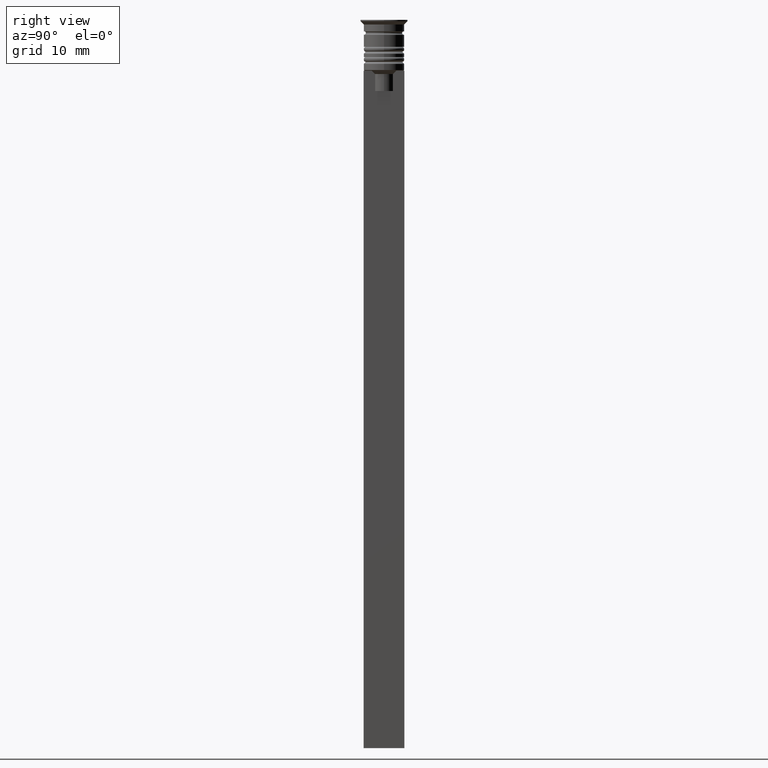
[diagram: clean part render]
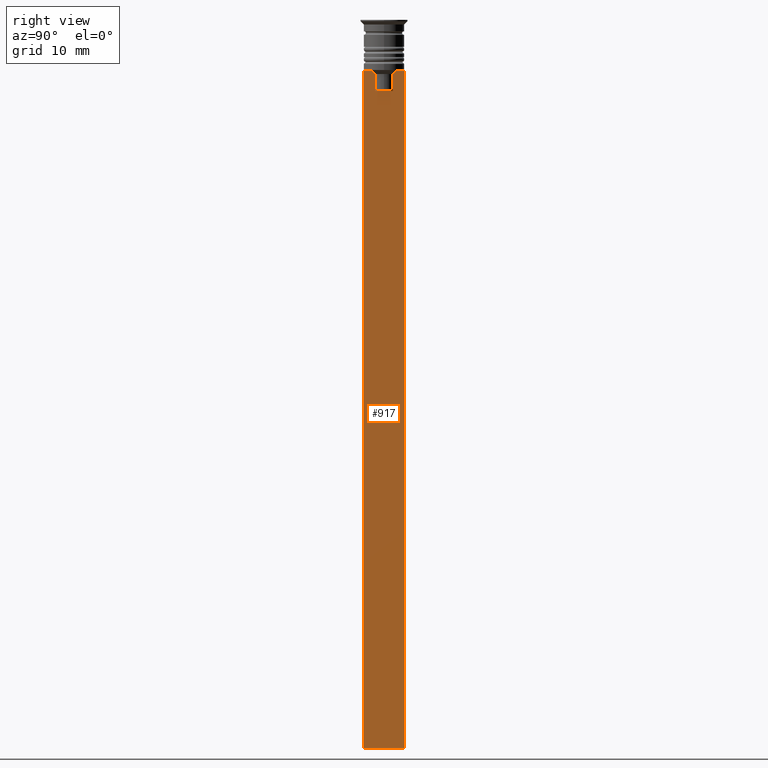
[diagram: same view with one face highlighted and labeled with its STEP entity id]
A machine part, right view. The second image highlights one B-rep face of the part: STEP entity #917.
In plain terms, the highlighted planar face has unit normal (-1, 0, 0).
Its self-contained STEP definition (entity closure, byte-faithful):
#1 = ORIENTED_EDGE ( 'NONE', *, *, #638, .T. ) ;
#42 = VERTEX_POINT ( 'NONE', #1387 ) ;
#60 = CARTESIAN_POINT ( 'NONE',  ( 0.4999999999999998890, -1.833030277982335754, -7.500000000000000000 ) ) ;
#108 = ORIENTED_EDGE ( 'NONE', *, *, #545, .T. ) ;
#123 = VERTEX_POINT ( 'NONE', #985 ) ;
#165 = CARTESIAN_POINT ( 'NONE',  ( 0.4999999999999998890, -1.484307477388859153, -7.835011508197190722 ) ) ;
#179 = VERTEX_POINT ( 'NONE', #1964 ) ;
#271 = LINE ( 'NONE', #760, #765 ) ;
#276 = FACE_OUTER_BOUND ( 'NONE', #792, .T. ) ;
#300 = CARTESIAN_POINT ( 'NONE',  ( 0.4999999999999998890, -1.307669683062199439, -10.49999999999999822 ) ) ;
#352 = CARTESIAN_POINT ( 'NONE',  ( 0.4999999999999998890, 3.000000000000000000, -107.5000000000000000 ) ) ;
#374 = ORIENTED_EDGE ( 'NONE', *, *, #1844, .T. ) ;
#380 = DIRECTION ( 'NONE',  ( 0.000000000000000000, 0.000000000000000000, -1.000000000000000000 ) ) ;
#385 = LINE ( 'NONE', #751, #1558 ) ;
#453 = EDGE_CURVE ( 'NONE', #1350, #633, #825, .T. ) ;
#488 = CARTESIAN_POINT ( 'NONE',  ( 0.4999999999999998890, 1.659046061654642967, -7.667851756010362507 ) ) ;
#544 = EDGE_CURVE ( 'NONE', #1105, #1692, #1572, .T. ) ;
#545 = EDGE_CURVE ( 'NONE', #123, #771, #1427, .T. ) ;
#594 = VERTEX_POINT ( 'NONE', #1801 ) ;
#633 = VERTEX_POINT ( 'NONE', #352 ) ;
#638 = EDGE_CURVE ( 'NONE', #179, #1078, #1042, .T. ) ;
#685 = DIRECTION ( 'NONE',  ( 0.000000000000000000, 0.000000000000000000, -1.000000000000000000 ) ) ;
#724 = ORIENTED_EDGE ( 'NONE', *, *, #1330, .T. ) ;
#751 = CARTESIAN_POINT ( 'NONE',  ( 0.4999999999999998890, -3.000000000000000000, -107.5000000000000000 ) ) ;
#760 = CARTESIAN_POINT ( 'NONE',  ( 0.4999999999999998890, 1.399999999999997691, -10.49999999999999822 ) ) ;
#765 = VECTOR ( 'NONE', #1296, 1000.000000000000000 ) ;
#771 = VERTEX_POINT ( 'NONE', #1511 ) ;
#772 = EDGE_CURVE ( 'NONE', #1350, #1105, #1113, .T. ) ;
#776 = PLANE ( 'NONE',  #938 ) ;
#792 = EDGE_LOOP ( 'NONE', ( #2302, #1261, #108, #1536, #2286, #1514, #856, #1, #724, #374, #1367, #1034 ) ) ;
#825 = LINE ( 'NONE', #1582, #1468 ) ;
#854 = CARTESIAN_POINT ( 'NONE',  ( 0.4999999999999998890, 2.856571371417139904, -7.500000000000000000 ) ) ;
#856 = ORIENTED_EDGE ( 'NONE', *, *, #1339, .T. ) ;
#871 = EDGE_CURVE ( 'NONE', #1692, #123, #1947, .T. ) ;
#917 = ADVANCED_FACE ( 'NONE', ( #276 ), #776, .F. ) ;
#938 = AXIS2_PLACEMENT_3D ( 'NONE', #2215, #2014, #1148 ) ;
#985 = CARTESIAN_POINT ( 'NONE',  ( 0.4999999999999998890, 1.307669683062199439, -8.000000000000000000 ) ) ;
#989 = DIRECTION ( 'NONE',  ( -0.000000000000000000, -0.000000000000000000, 1.000000000000000000 ) ) ;
#1016 = CARTESIAN_POINT ( 'NONE',  ( 0.4999999999999998890, -3.000000000000000000, -7.500000000000000000 ) ) ;
#1034 = ORIENTED_EDGE ( 'NONE', *, *, #772, .T. ) ;
#1042 = LINE ( 'NONE', #1769, #2152 ) ;
#1058 = CARTESIAN_POINT ( 'NONE',  ( 0.4999999999999998890, 1.307669683062199439, 0.000000000000000000 ) ) ;
#1073 = LINE ( 'NONE', #1254, #2157 ) ;
#1078 = VERTEX_POINT ( 'NONE', #1016 ) ;
#1105 = VERTEX_POINT ( 'NONE', #854 ) ;
#1107 = CARTESIAN_POINT ( 'NONE',  ( 0.4999999999999998890, -3.000000000000000000, -7.500000000000000000 ) ) ;
#1113 = LINE ( 'NONE', #2233, #2085 ) ;
#1117 = DIRECTION ( 'NONE',  ( 0.000000000000000000, -1.000000000000000000, 0.000000000000000000 ) ) ;
#1139 = VECTOR ( 'NONE', #989, 1000.000000000000000 ) ;
#1147 = LINE ( 'NONE', #1107, #2089 ) ;
#1148 = DIRECTION ( 'NONE',  ( 0.000000000000000000, 0.000000000000000000, 1.000000000000000000 ) ) ;
#1189 = CARTESIAN_POINT ( 'NONE',  ( 0.4999999999999998890, 1.484355510416485835, -7.834966642958598015 ) ) ;
#1196 = CARTESIAN_POINT ( 'NONE',  ( 0.4999999999999998890, -1.307669683062199439, 0.000000000000000000 ) ) ;
#1202 = CARTESIAN_POINT ( 'NONE',  ( 0.4999999999999998890, -3.000000000000000000, -7.500000000000000000 ) ) ;
#1233 = B_SPLINE_CURVE_WITH_KNOTS ( 'NONE', 3,
 ( #2146, #165, #1916, #2137 ),
 .UNSPECIFIED., .F., .F.,
 ( 4, 4 ),
 ( 0.007225659348748082224, 0.007950554640278054835 ),
 .UNSPECIFIED. ) ;
#1254 = CARTESIAN_POINT ( 'NONE',  ( 0.4999999999999998890, -3.000000000000000000, -1.417237469701779329 ) ) ;
#1261 = ORIENTED_EDGE ( 'NONE', *, *, #871, .T. ) ;
#1289 = DIRECTION ( 'NONE',  ( 0.000000000000000000, 1.000000000000000000, 0.000000000000000000 ) ) ;
#1296 = DIRECTION ( 'NONE',  ( 0.000000000000000000, -1.000000000000000000, 0.000000000000000000 ) ) ;
#1327 = CARTESIAN_POINT ( 'NONE',  ( 0.4999999999999998890, 1.833030277982335754, -7.500000000000000000 ) ) ;
#1330 = EDGE_CURVE ( 'NONE', #1078, #42, #1073, .T. ) ;
#1339 = EDGE_CURVE ( 'NONE', #1545, #179, #1147, .T. ) ;
#1350 = VERTEX_POINT ( 'NONE', #2261 ) ;
#1367 = ORIENTED_EDGE ( 'NONE', *, *, #453, .F. ) ;
#1387 = CARTESIAN_POINT ( 'NONE',  ( 0.4999999999999998890, -3.000000000000000000, -107.5000000000000000 ) ) ;
#1417 = DIRECTION ( 'NONE',  ( 0.000000000000000000, -1.000000000000000000, 0.000000000000000000 ) ) ;
#1427 = LINE ( 'NONE', #1058, #1432 ) ;
#1432 = VECTOR ( 'NONE', #380, 1000.000000000000000 ) ;
#1468 = VECTOR ( 'NONE', #685, 1000.000000000000000 ) ;
#1511 = CARTESIAN_POINT ( 'NONE',  ( 0.4999999999999998890, 1.307669683062199439, -10.49999999999999822 ) ) ;
#1514 = ORIENTED_EDGE ( 'NONE', *, *, #2240, .T. ) ;
#1523 = EDGE_CURVE ( 'NONE', #771, #1819, #271, .T. ) ;
#1531 = LINE ( 'NONE', #1196, #1139 ) ;
#1536 = ORIENTED_EDGE ( 'NONE', *, *, #1523, .T. ) ;
#1545 = VERTEX_POINT ( 'NONE', #60 ) ;
#1558 = VECTOR ( 'NONE', #1289, 1000.000000000000000 ) ;
#1561 = CARTESIAN_POINT ( 'NONE',  ( 0.4999999999999998890, 1.833030277982335754, -7.500000000000000000 ) ) ;
#1572 = LINE ( 'NONE', #1202, #2228 ) ;
#1582 = CARTESIAN_POINT ( 'NONE',  ( 0.4999999999999998890, 3.000000000000000000, -1.417237469701779329 ) ) ;
#1692 = VERTEX_POINT ( 'NONE', #1327 ) ;
#1769 = CARTESIAN_POINT ( 'NONE',  ( 0.4999999999999998890, -3.000000000000000000, -7.500000000000000000 ) ) ;
#1801 = CARTESIAN_POINT ( 'NONE',  ( 0.4999999999999998890, -1.307669683062199439, -8.000000000000000000 ) ) ;
#1819 = VERTEX_POINT ( 'NONE', #300 ) ;
#1844 = EDGE_CURVE ( 'NONE', #42, #633, #385, .T. ) ;
#1907 = CARTESIAN_POINT ( 'NONE',  ( 0.4999999999999998890, 1.307669683062199439, -8.000000000000000000 ) ) ;
#1916 = CARTESIAN_POINT ( 'NONE',  ( 0.4999999999999998890, -1.659011726860414093, -7.667884880598472286 ) ) ;
#1947 = B_SPLINE_CURVE_WITH_KNOTS ( 'NONE', 3,
 ( #1561, #488, #1189, #1907 ),
 .UNSPECIFIED., .F., .F.,
 ( 4, 4 ),
 ( 0.003278537493109848298, 0.004003794023484941178 ),
 .UNSPECIFIED. ) ;
#1964 = CARTESIAN_POINT ( 'NONE',  ( 0.4999999999999998890, -2.856571371417139904, -7.500000000000000000 ) ) ;
#1968 = EDGE_CURVE ( 'NONE', #1819, #594, #1531, .T. ) ;
#1978 = DIRECTION ( 'NONE',  ( 0.000000000000000000, 0.000000000000000000, -1.000000000000000000 ) ) ;
#2006 = DIRECTION ( 'NONE',  ( 0.000000000000000000, -1.000000000000000000, 0.000000000000000000 ) ) ;
#2014 = DIRECTION ( 'NONE',  ( -1.000000000000000000, 0.000000000000000000, 0.000000000000000000 ) ) ;
#2085 = VECTOR ( 'NONE', #2006, 1000.000000000000000 ) ;
#2089 = VECTOR ( 'NONE', #1117, 1000.000000000000000 ) ;
#2137 = CARTESIAN_POINT ( 'NONE',  ( 0.4999999999999998890, -1.833030277982335754, -7.500000000000000000 ) ) ;
#2146 = CARTESIAN_POINT ( 'NONE',  ( 0.4999999999999998890, -1.307669683062199439, -8.000000000000000000 ) ) ;
#2152 = VECTOR ( 'NONE', #1417, 1000.000000000000000 ) ;
#2157 = VECTOR ( 'NONE', #1978, 1000.000000000000000 ) ;
#2215 = CARTESIAN_POINT ( 'NONE',  ( 0.4999999999999998890, -3.000000000000000000, -1.417237469701779329 ) ) ;
#2228 = VECTOR ( 'NONE', #2293, 1000.000000000000000 ) ;
#2233 = CARTESIAN_POINT ( 'NONE',  ( 0.4999999999999998890, -3.000000000000000000, -7.500000000000000000 ) ) ;
#2240 = EDGE_CURVE ( 'NONE', #594, #1545, #1233, .T. ) ;
#2261 = CARTESIAN_POINT ( 'NONE',  ( 0.4999999999999998890, 3.000000000000000000, -7.500000000000000000 ) ) ;
#2286 = ORIENTED_EDGE ( 'NONE', *, *, #1968, .T. ) ;
#2293 = DIRECTION ( 'NONE',  ( 0.000000000000000000, -1.000000000000000000, 0.000000000000000000 ) ) ;
#2302 = ORIENTED_EDGE ( 'NONE', *, *, #544, .T. ) ;